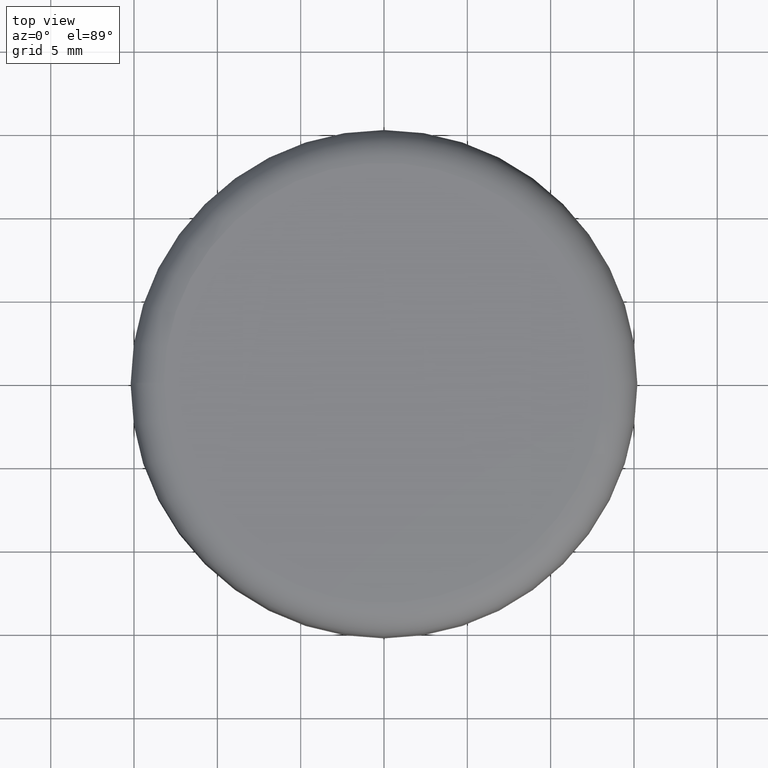
[diagram: clean part render]
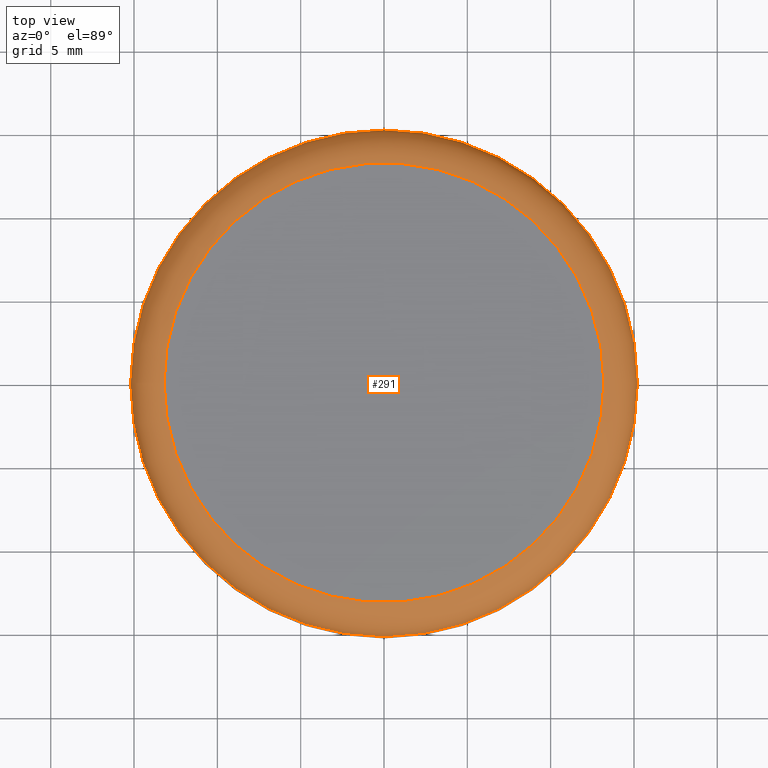
[diagram: same view with one face highlighted and labeled with its STEP entity id]
A machine part, top view. The second image highlights one B-rep face of the part: STEP entity #291.
In plain terms, the highlighted toroidal blend (fillet) surface has major radius 13.2 mm and minor (blend) radius 2 mm.
Its self-contained STEP definition (entity closure, byte-faithful):
#75=TOROIDAL_SURFACE('',#985,13.1999999999998,2.);
#93=FACE_BOUND('',#403,.T.);
#94=FACE_BOUND('',#404,.T.);
#291=ADVANCED_FACE('',(#93,#94),#75,.T.);
#403=EDGE_LOOP('',(#493));
#404=EDGE_LOOP('',(#494));
#493=ORIENTED_EDGE('',*,*,#831,.T.);
#494=ORIENTED_EDGE('',*,*,#830,.T.);
#746=VERTEX_POINT('',#1367);
#747=VERTEX_POINT('',#1370);
#830=EDGE_CURVE('',#746,#746,#948,.T.);
#831=EDGE_CURVE('',#747,#747,#949,.T.);
#948=CIRCLE('',#982,15.1999999999998);
#949=CIRCLE('',#984,13.1999999999998);
#982=AXIS2_PLACEMENT_3D('',#1366,#1096,#1097);
#984=AXIS2_PLACEMENT_3D('',#1369,#1100,#1101);
#985=AXIS2_PLACEMENT_3D('',#1371,#1102,#1103);
#1096=DIRECTION('',(0.,0.,1.));
#1097=DIRECTION('',(-1.,0.,0.));
#1100=DIRECTION('',(0.,0.,-1.));
#1101=DIRECTION('',(-1.,0.,0.));
#1102=DIRECTION('',(5.015596E-014,-4.669659E-016,-1.));
#1103=DIRECTION('',(0.,-1.,0.));
#1366=CARTESIAN_POINT('',(-1.105542647E-011,1.02929086674968E-013,196.491983416322));
#1367=CARTESIAN_POINT('',(-15.2000000000109,1.02929086674968E-013,196.491983416322));
#1369=CARTESIAN_POINT('',(-1.115573839E-011,1.03863018474968E-013,198.491983416322));
#1370=CARTESIAN_POINT('',(-13.200000000011,1.03863018474968E-013,198.491983416322));
#1371=CARTESIAN_POINT('',(-1.105542647E-011,1.02929086674968E-013,196.491983416322));